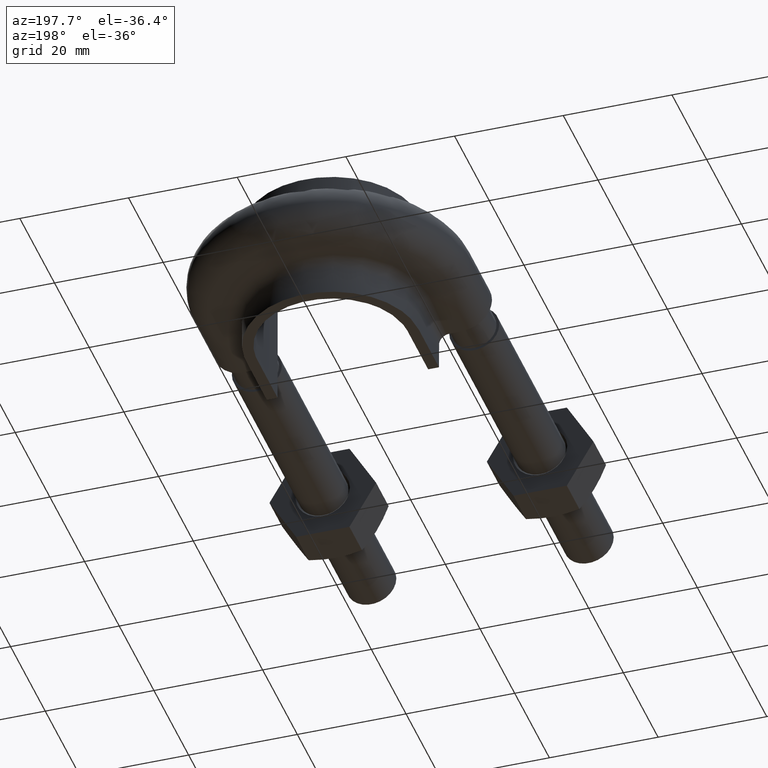
[diagram: clean part render]
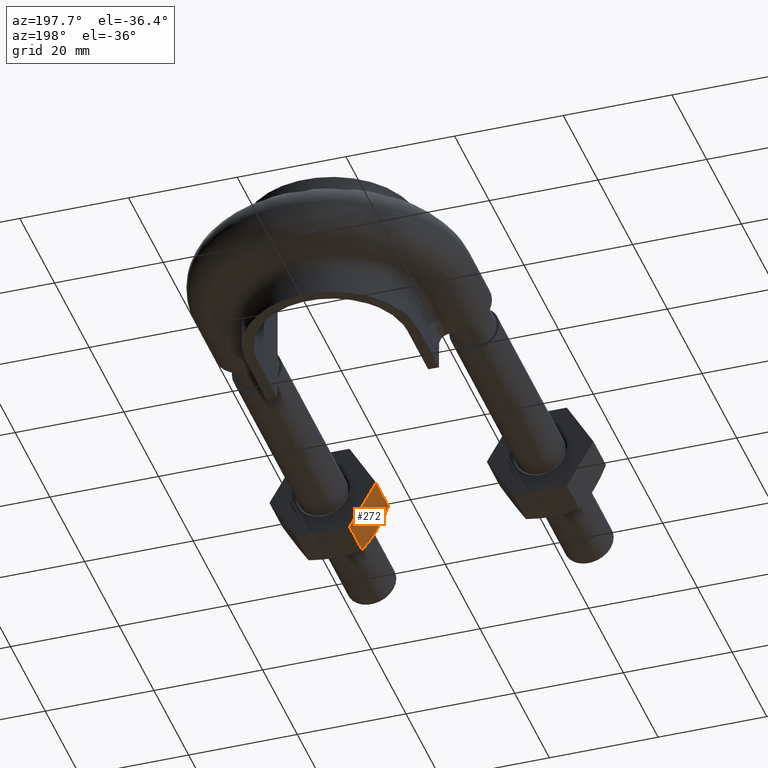
[diagram: same view with one face highlighted and labeled with its STEP entity id]
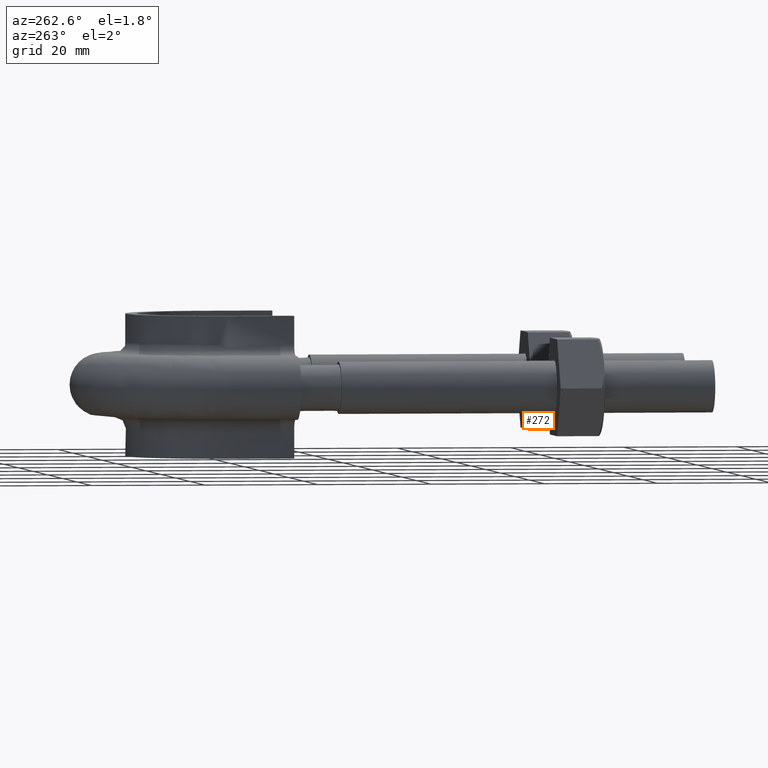
[diagram: same view with one face highlighted and labeled with its STEP entity id]
A machine part, auxiliary view. The second image highlights one B-rep face of the part: STEP entity #272.
A second angle (auxiliary view) of the same face is appended — the face is thin or edge-on in the first view.
In plain terms, the highlighted planar face has unit normal (0.866, -0, 0.5).
Its self-contained STEP definition (entity closure, byte-faithful):
#272 = ADVANCED_FACE( '', ( #401 ), #402, .F. );
#401 = FACE_OUTER_BOUND( '', #1259, .T. );
#402 = PLANE( '', #1260 );
#1259 = EDGE_LOOP( '', ( #1684, #1685, #1686, #1687, #1688 ) );
#1260 = AXIS2_PLACEMENT_3D( '', #1689, #1690, #1691 );
#1684 = ORIENTED_EDGE( '', *, *, #1821, .F. );
#1685 = ORIENTED_EDGE( '', *, *, #1854, .F. );
#1686 = ORIENTED_EDGE( '', *, *, #1855, .F. );
#1687 = ORIENTED_EDGE( '', *, *, #1828, .F. );
#1688 = ORIENTED_EDGE( '', *, *, #1848, .F. );
#1689 = CARTESIAN_POINT( '', ( 15.0925227118886, 27.9999999999975, -8.49999999999669 ) );
#1690 = DIRECTION( '', ( 0.866025403784574, -4.54831243664017E-016, 0.499999999999766 ) );
#1691 = DIRECTION( '', ( 0.499999999999766, -1.91894260162052E-016, -0.866025403784573 ) );
#1821 = EDGE_CURVE( '', #1994, #2007, #2008, .T. );
#1828 = EDGE_CURVE( '', #2018, #2020, #2021, .T. );
#1848 = EDGE_CURVE( '', #2007, #2018, #2051, .T. );
#1854 = EDGE_CURVE( '', #2059, #1994, #2060, .T. );
#1855 = EDGE_CURVE( '', #2020, #2059, #2061, .F. );
#1994 = VERTEX_POINT( '', #2470 );
#2007 = VERTEX_POINT( '', #2491 );
#2008 = B_SPLINE_CURVE_WITH_KNOTS( '', 3, ( #2492, #2493, #2494, #2495, #2496, #2497, #2498, #2499 ), .UNSPECIFIED., .F., .F., ( 4, 2, 2, 4 ), ( 0.00493529902949270, 0.00616408349151651, 0.00739286795354032, 0.00985043687758794 ), .UNSPECIFIED. );
#2018 = VERTEX_POINT( '', #2510 );
#2020 = VERTEX_POINT( '', #2512 );
#2021 = LINE( '', #2513, #2514 );
#2051 = LINE( '', #2582, #2583 );
#2059 = VERTEX_POINT( '', #2603 );
#2060 = B_SPLINE_CURVE_WITH_KNOTS( '', 3, ( #2604, #2605, #2606, #2607, #2608, #2609 ), .UNSPECIFIED., .F., .F., ( 4, 2, 4 ), ( 7.17194508349794E-007, 0.00246800811200052, 0.00493529902949270 ), .UNSPECIFIED. );
#2061 = LINE( '', #2610, #2611 );
#2470 = CARTESIAN_POINT( '', ( 12.6387840678329, 20.0000000000000, -4.24999999999702 ) );
#2491 = CARTESIAN_POINT( '', ( 15.0775337474841, 20.7505553499463, -8.47403835209531 ) );
#2492 = CARTESIAN_POINT( '', ( 12.6387840678339, 19.9999999999991, -4.24999999999625 ) );
#2493 = CARTESIAN_POINT( '', ( 12.8456388817093, 19.9999999999991, -4.60828304741878 ) );
#2494 = CARTESIAN_POINT( '', ( 13.0535274786351, 20.0177112141211, -4.96835665960870 ) );
#2495 = CARTESIAN_POINT( '', ( 13.4647835686624, 20.0863020976790, -5.68067310245855 ) );
#2496 = CARTESIAN_POINT( '', ( 13.6690446268319, 20.1371114863331, -6.03446363321615 ) );
#2497 = CARTESIAN_POINT( '', ( 14.2782179102235, 20.3331491064648, -7.08958271066465 ) );
#2498 = CARTESIAN_POINT( '', ( 14.6795336334366, 20.5218250443843, -7.78468193314632 ) );
#2499 = CARTESIAN_POINT( '', ( 15.0775337474841, 20.7505553499459, -8.47403835209537 ) );
#2510 = CARTESIAN_POINT( '', ( 15.0775337474841, 27.9999999999975, -8.47403835209531 ) );
#2512 = CARTESIAN_POINT( '', ( 10.2000343881816, 27.9999999999975, -0.0259616478987313 ) );
#2513 = CARTESIAN_POINT( '', ( 10.1887840678330, 27.9999999999975, -0.00647552145360237 ) );
#2514 = VECTOR( '', #2762, 1000.00000000013 );
#2582 = CARTESIAN_POINT( '', ( 15.0775337474841, 27.9999999999975, -8.47403835209531 ) );
#2583 = VECTOR( '', #2787, 999.999999999896 );
#2603 = CARTESIAN_POINT( '', ( 10.2000343881816, 20.7505553499463, -0.0259616478987309 ) );
#2604 = CARTESIAN_POINT( '', ( 10.2000343881839, 20.7505553499459, -0.0259616478973568 ) );
#2605 = CARTESIAN_POINT( '', ( 10.5990861549557, 20.5212206605148, -0.717139582796722 ) );
#2606 = CARTESIAN_POINT( '', ( 11.0010202481482, 20.3324529479797, -1.41330985350078 ) );
#2607 = CARTESIAN_POINT( '', ( 11.8131657095163, 20.0714150925751, -2.81998705572768 ) );
#2608 = CARTESIAN_POINT( '', ( 12.2234378299155, 19.9999999999991, -3.53059921318852 ) );
#2609 = CARTESIAN_POINT( '', ( 12.6387840678339, 19.9999999999991, -4.24999999999625 ) );
#2610 = CARTESIAN_POINT( '', ( 10.2000343881816, 27.9999999999975, -0.0259616478987304 ) );
#2611 = VECTOR( '', #2793, 999.999999999896 );
#2762 = DIRECTION( '', ( -0.500000000000000, 1.91894260162175E-016, 0.866025403784439 ) );
#2787 = DIRECTION( '', ( 4.89842541528951E-016, 1.00000000000000, 6.12303176911188E-017 ) );
#2793 = DIRECTION( '', ( 4.89842541528951E-016, 1.00000000000000, 6.12303176911188E-017 ) );